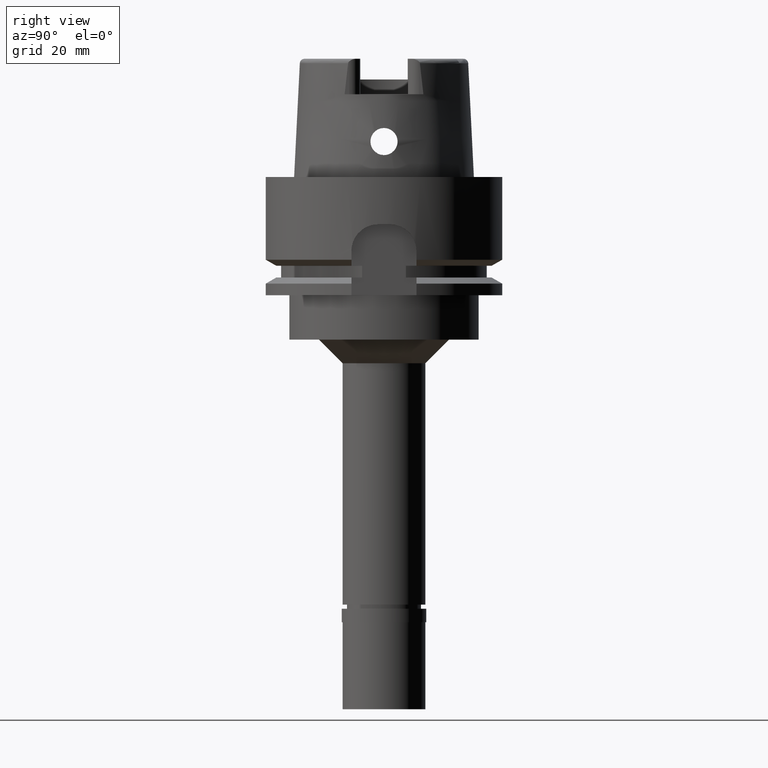
[diagram: clean part render]
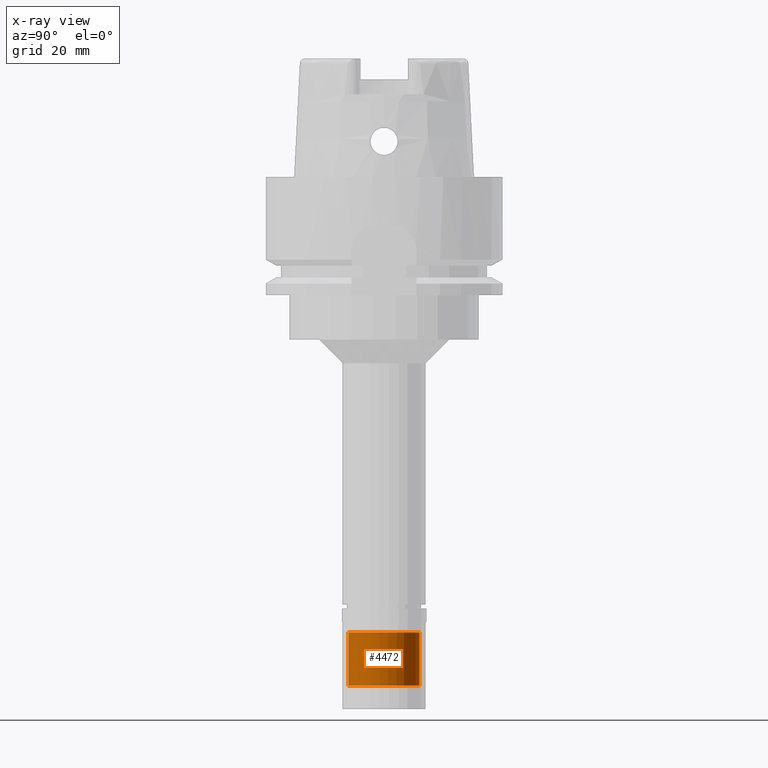
[diagram: x-ray — body ghosted, one internal face saturated and labeled with its STEP entity id]
A machine part, right view, then the same camera in x-ray: the body is ghosted and one INTERNAL B-rep face — a face not visible from any outside direction — is saturated and labeled: STEP entity #4472.
In plain terms, the highlighted cylindrical surface (edge-blend (fillet) strip) has radius 6 mm, axis along (0, 0, 1).
Its self-contained STEP definition (entity closure, byte-faithful):
#383 = DIRECTION ( 'NONE',  ( 0.0000000000000000000, 0.0000000000000000000, -1.000000000000000000 ) ) ;
#514 = DIRECTION ( 'NONE',  ( 0.0000000000000000000, 0.0000000000000000000, -1.000000000000000000 ) ) ;
#567 = VERTEX_POINT ( 'NONE', #4823 ) ;
#623 = CARTESIAN_POINT ( 'NONE',  ( 0.0000000000000000000, 0.0000000000000000000, -91.30000000000001137 ) ) ;
#761 = DIRECTION ( 'NONE',  ( 0.0000000000000000000, 1.000000000000000000, 0.0000000000000000000 ) ) ;
#948 = CARTESIAN_POINT ( 'NONE',  ( 0.0000000000000000000, -6.000000000000000000, -77.00000000000000000 ) ) ;
#1465 = DIRECTION ( 'NONE',  ( 0.0000000000000000000, -1.000000000000000000, 0.0000000000000000000 ) ) ;
#1560 = CIRCLE ( 'NONE', #2674, 6.000000000000000000 ) ;
#1677 = VECTOR ( 'NONE', #514, 1000.000000000000000 ) ;
#1817 = ORIENTED_EDGE ( 'NONE', *, *, #4330, .T. ) ;
#2055 = VERTEX_POINT ( 'NONE', #2682 ) ;
#2068 = EDGE_CURVE ( 'NONE', #4625, #567, #2174, .T. ) ;
#2102 = ORIENTED_EDGE ( 'NONE', *, *, #2433, .F. ) ;
#2174 = CIRCLE ( 'NONE', #4828, 6.000000000000000000 ) ;
#2265 = DIRECTION ( 'NONE',  ( 0.0000000000000000000, 1.000000000000000000, 0.0000000000000000000 ) ) ;
#2433 = EDGE_CURVE ( 'NONE', #2055, #567, #2978, .T. ) ;
#2598 = CARTESIAN_POINT ( 'NONE',  ( 0.0000000000000000000, 6.000000000000000000, -77.00000000000000000 ) ) ;
#2607 = ORIENTED_EDGE ( 'NONE', *, *, #2068, .T. ) ;
#2614 = LINE ( 'NONE', #948, #1677 ) ;
#2674 = AXIS2_PLACEMENT_3D ( 'NONE', #4069, #383, #761 ) ;
#2682 = CARTESIAN_POINT ( 'NONE',  ( 0.0000000000000000000, 6.000000000000000000, -77.00000000000000000 ) ) ;
#2978 = LINE ( 'NONE', #2598, #3631 ) ;
#2980 = ORIENTED_EDGE ( 'NONE', *, *, #3045, .T. ) ;
#3045 = EDGE_CURVE ( 'NONE', #2055, #3491, #1560, .T. ) ;
#3188 = DIRECTION ( 'NONE',  ( 0.0000000000000000000, 0.0000000000000000000, 1.000000000000000000 ) ) ;
#3491 = VERTEX_POINT ( 'NONE', #5050 ) ;
#3549 = CYLINDRICAL_SURFACE ( 'NONE', #4503, 6.000000000000000000 ) ;
#3631 = VECTOR ( 'NONE', #4604, 1000.000000000000000 ) ;
#4069 = CARTESIAN_POINT ( 'NONE',  ( 0.0000000000000000000, 0.0000000000000000000, -77.00000000000000000 ) ) ;
#4330 = EDGE_CURVE ( 'NONE', #3491, #4625, #2614, .T. ) ;
#4356 = FACE_OUTER_BOUND ( 'NONE', #4803, .T. ) ;
#4472 = ADVANCED_FACE ( 'NONE', ( #4356 ), #3549, .T. ) ;
#4503 = AXIS2_PLACEMENT_3D ( 'NONE', #623, #4752, #2265 ) ;
#4604 = DIRECTION ( 'NONE',  ( 0.0000000000000000000, 0.0000000000000000000, -1.000000000000000000 ) ) ;
#4625 = VERTEX_POINT ( 'NONE', #5234 ) ;
#4752 = DIRECTION ( 'NONE',  ( 0.0000000000000000000, 0.0000000000000000000, 1.000000000000000000 ) ) ;
#4803 = EDGE_LOOP ( 'NONE', ( #2980, #1817, #2607, #2102 ) ) ;
#4823 = CARTESIAN_POINT ( 'NONE',  ( 0.0000000000000000000, 6.000000000000000000, -86.00000000000000000 ) ) ;
#4827 = CARTESIAN_POINT ( 'NONE',  ( 0.0000000000000000000, 0.0000000000000000000, -86.00000000000000000 ) ) ;
#4828 = AXIS2_PLACEMENT_3D ( 'NONE', #4827, #3188, #1465 ) ;
#5050 = CARTESIAN_POINT ( 'NONE',  ( 0.0000000000000000000, -6.000000000000000000, -77.00000000000000000 ) ) ;
#5234 = CARTESIAN_POINT ( 'NONE',  ( 0.0000000000000000000, -6.000000000000000000, -86.00000000000000000 ) ) ;